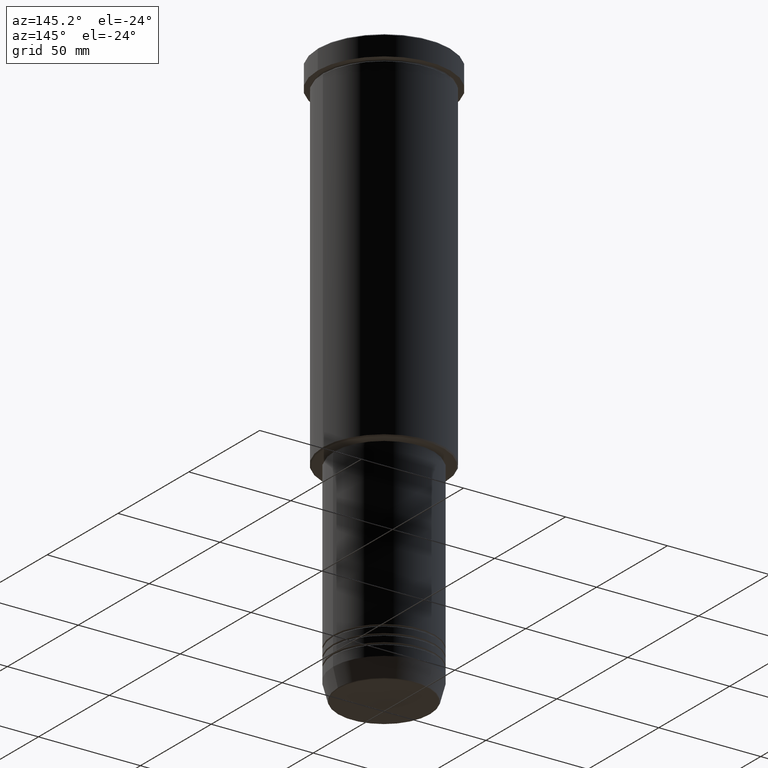
[diagram: clean part render]
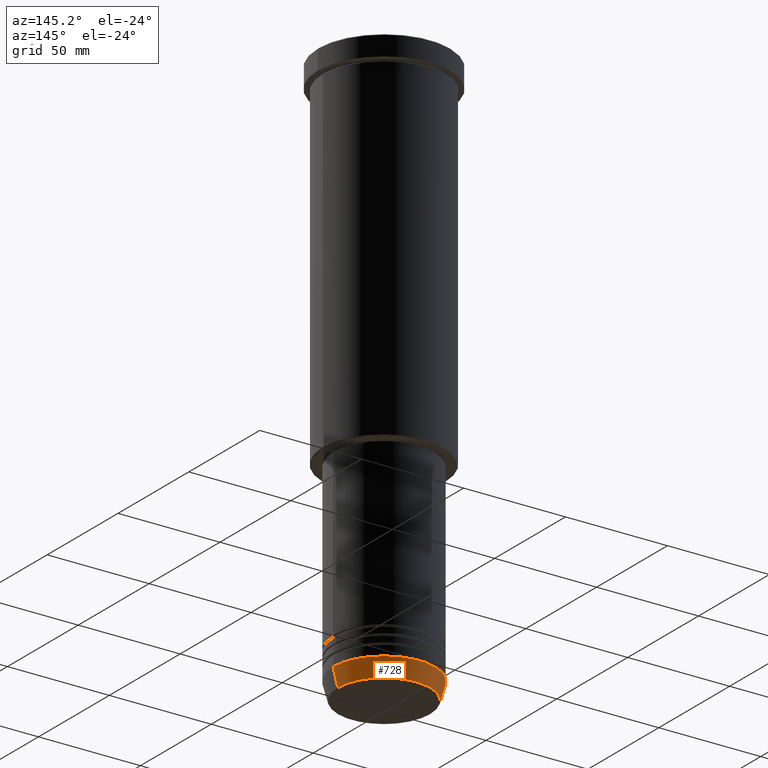
[diagram: same view with one face highlighted and labeled with its STEP entity id]
A machine part, auxiliary view. The second image highlights one B-rep face of the part: STEP entity #728.
In plain terms, the highlighted conical surface has half-angle 15 deg.
Its self-contained STEP definition (entity closure, byte-faithful):
#5 = AXIS2_PLACEMENT_3D ( 'NONE', #63, #804, #444 ) ;
#33 = CARTESIAN_POINT ( 'NONE',  ( -25.00000000000000000, 3.061616997868383043E-15, -271.0000000000000000 ) ) ;
#47 = CIRCLE ( 'NONE', #960, 25.00000000000000000 ) ;
#63 = CARTESIAN_POINT ( 'NONE',  ( 0.000000000000000000, 0.000000000000000000, -271.0000000000000000 ) ) ;
#191 = ORIENTED_EDGE ( 'NONE', *, *, #920, .T. ) ;
#237 = CARTESIAN_POINT ( 'NONE',  ( 22.68775668727494477, 0.000000000000000000, -279.6294095225512706 ) ) ;
#308 = CARTESIAN_POINT ( 'NONE',  ( -22.68775668727494477, 2.920032929279452581E-15, -279.6294095225512706 ) ) ;
#309 = AXIS2_PLACEMENT_3D ( 'NONE', #1141, #598, #1042 ) ;
#328 = CARTESIAN_POINT ( 'NONE',  ( 25.00000000000000000, 0.000000000000000000, -271.0000000000000000 ) ) ;
#329 = DIRECTION ( 'NONE',  ( 1.000000000000000000, 0.000000000000000000, 0.000000000000000000 ) ) ;
#336 = DIRECTION ( 'NONE',  ( 0.2588190451025215166, 0.000000000000000000, 0.9659258262890679791 ) ) ;
#341 = EDGE_LOOP ( 'NONE', ( #538, #191, #646, #640 ) ) ;
#421 = LINE ( 'NONE', #328, #939 ) ;
#444 = DIRECTION ( 'NONE',  ( 1.000000000000000000, 0.000000000000000000, 0.000000000000000000 ) ) ;
#491 = EDGE_CURVE ( 'NONE', #824, #1079, #1148, .T. ) ;
#493 = EDGE_CURVE ( 'NONE', #824, #679, #421, .T. ) ;
#538 = ORIENTED_EDGE ( 'NONE', *, *, #491, .T. ) ;
#559 = CONICAL_SURFACE ( 'NONE', #5, 25.00000000000000000, 0.2617993877991502960 ) ;
#598 = DIRECTION ( 'NONE',  ( -0.000000000000000000, -0.000000000000000000, 1.000000000000000000 ) ) ;
#640 = ORIENTED_EDGE ( 'NONE', *, *, #493, .F. ) ;
#646 = ORIENTED_EDGE ( 'NONE', *, *, #743, .F. ) ;
#654 = LINE ( 'NONE', #1183, #739 ) ;
#679 = VERTEX_POINT ( 'NONE', #852 ) ;
#728 = ADVANCED_FACE ( 'NONE', ( #1037 ), #559, .T. ) ;
#739 = VECTOR ( 'NONE', #1179, 1000.000000000000114 ) ;
#743 = EDGE_CURVE ( 'NONE', #679, #1092, #47, .T. ) ;
#804 = DIRECTION ( 'NONE',  ( -0.000000000000000000, -0.000000000000000000, 1.000000000000000000 ) ) ;
#824 = VERTEX_POINT ( 'NONE', #237 ) ;
#852 = CARTESIAN_POINT ( 'NONE',  ( 25.00000000000000000, 0.000000000000000000, -271.0000000000000000 ) ) ;
#920 = EDGE_CURVE ( 'NONE', #1079, #1092, #654, .T. ) ;
#939 = VECTOR ( 'NONE', #336, 1000.000000000000114 ) ;
#960 = AXIS2_PLACEMENT_3D ( 'NONE', #1061, #1160, #329 ) ;
#1037 = FACE_OUTER_BOUND ( 'NONE', #341, .T. ) ;
#1042 = DIRECTION ( 'NONE',  ( 1.000000000000000000, 0.000000000000000000, 0.000000000000000000 ) ) ;
#1061 = CARTESIAN_POINT ( 'NONE',  ( 0.000000000000000000, 0.000000000000000000, -271.0000000000000000 ) ) ;
#1079 = VERTEX_POINT ( 'NONE', #308 ) ;
#1092 = VERTEX_POINT ( 'NONE', #33 ) ;
#1141 = CARTESIAN_POINT ( 'NONE',  ( 0.000000000000000000, 0.000000000000000000, -279.6294095225512706 ) ) ;
#1148 = CIRCLE ( 'NONE', #309, 22.68775668727494477 ) ;
#1160 = DIRECTION ( 'NONE',  ( -0.000000000000000000, -0.000000000000000000, 1.000000000000000000 ) ) ;
#1179 = DIRECTION ( 'NONE',  ( -0.2588190451025215166, 3.169619151431774802E-17, 0.9659258262890679791 ) ) ;
#1183 = CARTESIAN_POINT ( 'NONE',  ( -25.00000000000000000, 3.061616997868383043E-15, -271.0000000000000000 ) ) ;